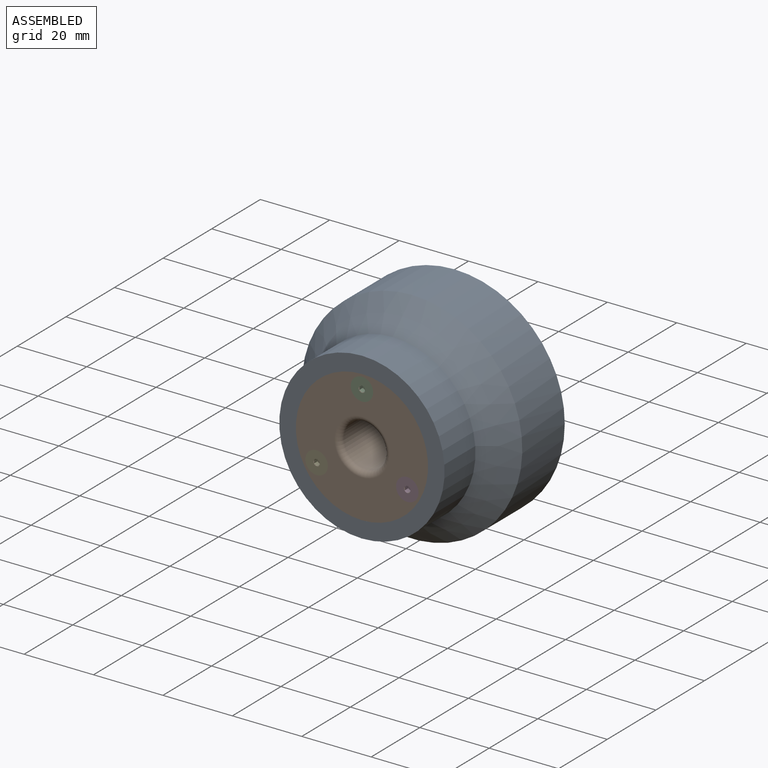
[diagram: assembled view]
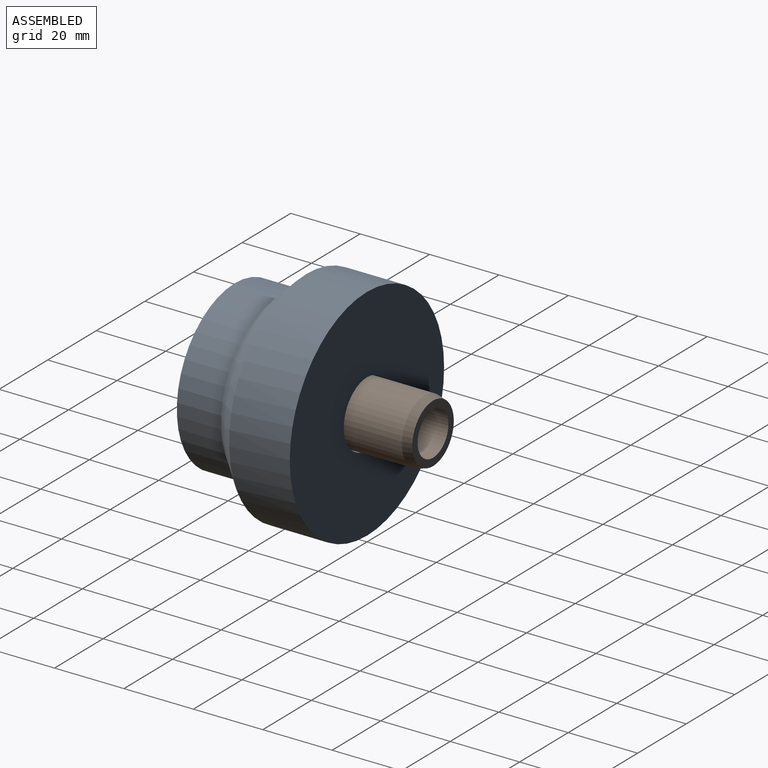
[diagram: assembled view, second angle]
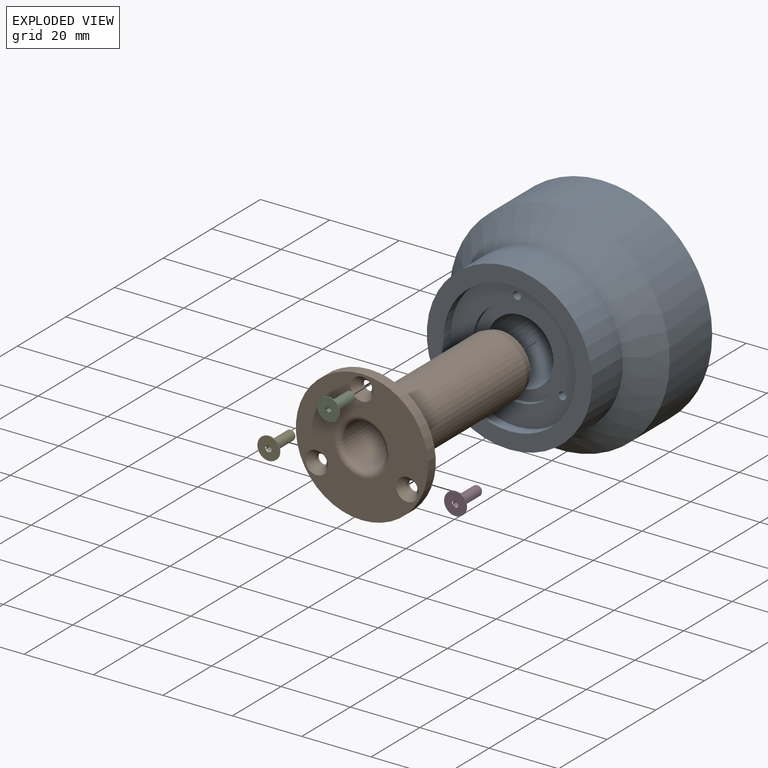
[diagram: exploded view]
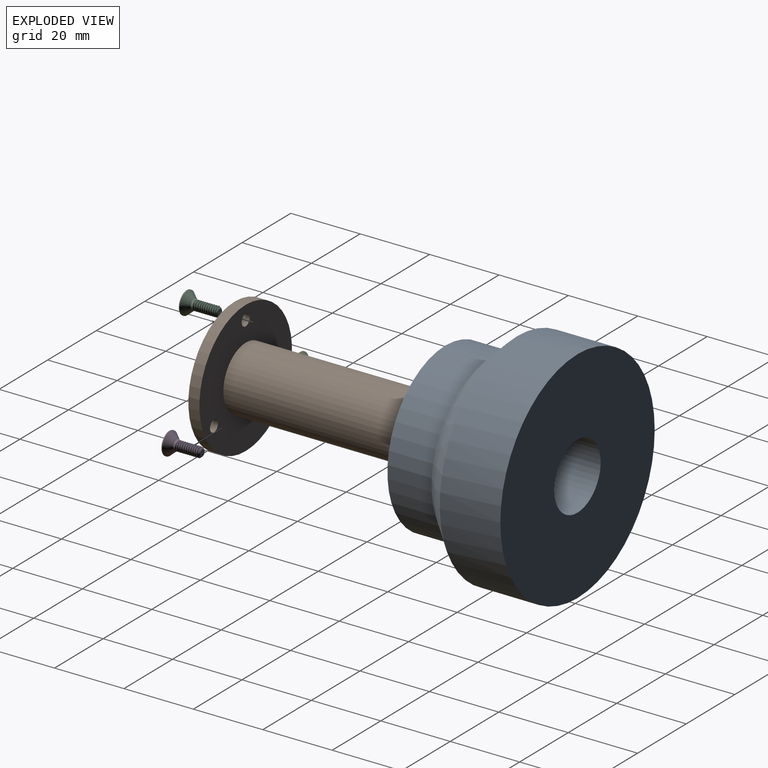
[diagram: exploded view, second angle]
ASSEMBLY  parts=5 mates=2
PART A: 16 faces, bbox 63.5x38.1x63.5 mm
  f0: plane 47.63x47.63mm, normal (0,-1,0), area 641.3mm2, adj f8,f14
  f1: cone r=0mm half-angle=59deg, axis (0,-1,0), area 4.7mm2, adj f2
  f2: cylinder r=1.13mm len=8.26mm, axis (0,-1,0), area 58.6mm2, adj f1,f9
  f3: cone r=0mm half-angle=59deg, axis (0,-1,0), area 4.7mm2, adj f4
  f4: cylinder r=1.13mm len=8.26mm, axis (0,-1,0), area 58.6mm2, adj f3,f9
  f5: cylinder r=9.53mm len=33.6mm, axis (0,1,0), area 2011.1mm2, adj f7,f11
  f6: cylinder r=31.75mm len=63.5mm, axis (0,1,0), area 3483.6mm2, adj f7,f15
  f7: plane 63.5x63.5mm, normal (0,1,0), area 2881.9mm2, adj f5,f6
  f8: cylinder r=19.05mm len=38.1mm, axis (0,-1,0), area 380mm2, adj f0,f9
  f9: plane 38.1x38.1mm, normal (0,-1,0), area 617.3mm2, adj f2,f4,f8,f10,f13
  f10: cylinder r=12.75mm len=25.5mm, axis (0,-1,0), area 105.8mm2, adj f9,f11
  f11: plane 25.5x25.5mm, normal (0,-1,0), area 225.7mm2, adj f5,f10
  f12: cone r=0mm half-angle=59deg, axis (0,-1,0), area 4.7mm2, adj f13
  f13: cylinder r=1.13mm len=8.26mm, axis (0,-1,0), area 58.6mm2, adj f9,f12
  f14: cylinder r=23.81mm len=47.63mm, axis (0,1,0), area 1900.2mm2, adj f0,f15
  f15: cone r=23.81mm half-angle=45deg, axis (0,1,0), area 1959.4mm2, adj f6,f14
PART B: 14 faces, bbox 57.2x38.1x38.1 mm
  f0: cylinder r=1.63mm len=3.26mm, axis (-1,0,0), area 13.6mm2, adj f1,f9
  f1: cone r=1.63mm half-angle=41deg, axis (-1,0,0), area 37.5mm2, adj f0,f5
  f2: cylinder r=1.63mm len=3.26mm, axis (-1,0,0), area 13.6mm2, adj f3,f9
  f3: cone r=1.63mm half-angle=41deg, axis (-1,0,0), area 37.5mm2, adj f2,f5
  f4: cylinder r=19.05mm len=38.1mm, axis (-1,0,0), area 380mm2, adj f5,f9
  f5: plane 38.1x38.1mm, normal (-1,0,0), area 843.3mm2, adj f1,f3,f4,f11,f13
  f6: cylinder r=6.35mm len=55.56mm, axis (-1,0,0), area 2216.8mm2, adj f7,f13
  f7: plane 17.05x17.05mm, normal (1,0,0), area 101.7mm2, adj f6,f12
  f8: cylinder r=9.21mm len=51.44mm, axis (-1,0,0), area 2975.6mm2, adj f9,f12
  f9: plane 38.1x38.1mm, normal (1,0,0), area 848.7mm2, adj f0,f2,f4,f8,f10
  f10: cylinder r=1.63mm len=3.26mm, axis (-1,0,0), area 13.6mm2, adj f9,f11
  f11: cone r=1.63mm half-angle=41deg, axis (-1,0,0), area 37.5mm2, adj f5,f10
  f12: cone r=9.21mm half-angle=15deg, axis (-1,0,0), area 146.5mm2, adj f7,f8
  f13: torus R=7.94mm, axis (1,0,0), area 108.5mm2, adj f5,f6
PART C: 24 faces, bbox 6.8x6.8x10.1 mm
  f0: cone r=0.92mm half-angle=45deg, axis (0,0,1), area 0.1mm2, adj f11,f18
  f1: cone r=1.42mm half-angle=47.5deg, axis (0,0,1), area 2.2mm2, adj f4,f6,f8,f9
  f2: cylinder r=3.24mm len=6.48mm, axis (0,0,1), area 4.3mm2, adj f3,f11
  f3: cone r=1.59mm half-angle=41deg, axis (0,0,1), area 38.1mm2, adj f2,f4
  f4: torus R=2.1mm, axis (0,0,1), area 4.5mm2, adj f1,f3,f7
  f5: cone r=0.95mm half-angle=45deg, axis (0,0,1), area 2.7mm2, adj f6,f7,f8,f9,f10
  f6: cylinder r=1.01mm len=6.53mm, axis (0,0,1), area 5.2mm2, adj f1,f5,f8,f9
  f7: cylinder r=1.42mm len=6.49mm, axis (0,0,-1), area 7.3mm2, adj f4,f5,f8,f9
  f8: bspline ~7.54x3.29mm, area 37.4mm2, adj f1,f5,f6,f7
  f9: bspline ~7.01x3.29mm, area 37.4mm2, adj f1,f5,f6,f7
  f10: plane 1.89x1.89mm, normal (0,0,-1), area 2.8mm2, adj f5
  f11: plane 6.48x6.48mm, normal (0,0,1), area 30.3mm2, adj f0,f2,f12,f13,f14,f15,f16
  f12: cone r=0.92mm half-angle=45deg, axis (0,0,1), area 0mm2, adj f11,f19
  f13: cone r=0.92mm half-angle=45deg, axis (0,0,1), area 0mm2, adj f11,f20
  f14: cone r=0.92mm half-angle=45deg, axis (0,0,1), area 0mm2, adj f11,f21
  f15: cone r=0.92mm half-angle=45deg, axis (0,0,1), area 0mm2, adj f11,f22
  f16: cone r=0.92mm half-angle=45deg, axis (0,0,1), area 0mm2, adj f11,f23
  f17: plane 1.83x1.59mm, normal (0,0,1), area 2.2mm2, adj f18,f19,f20,f21,f22,f23
  f18: plane 1.56x1.01mm, normal (-1,0,0), area 1.3mm2, adj f0,f17,f19,f23
  f19: plane 1.82x1.14mm, normal (-0.5,-0.87,0), area 1.3mm2, adj f12,f17,f18,f20
  f20: plane 1.82x1.14mm, normal (0.5,-0.87,0), area 1.3mm2, adj f13,f17,f19,f21
  f21: plane 1.82x1.26mm, normal (1,0,0), area 1.3mm2, adj f14,f17,f20,f22
  f22: plane 1.82x1.14mm, normal (0.5,0.87,0), area 1.3mm2, adj f15,f17,f21,f23
  f23: plane 1.82x1.14mm, normal (-0.5,0.87,0), area 1.3mm2, adj f16,f17,f18,f22
PART D: same geometry as C
PART E: same geometry as C
PLACE A at identity fixed
PLACE B rot(axis=(0,0,1),90deg) t=(0,-38.1,0)mm
PLACE C rot(axis=(1,0,0),90deg) t=(0,-38.1,15.09)mm
PLACE D rot(axis=(0.38,0.65,-0.65),138.6deg) t=(13.07,-38.1,-7.54)mm
PLACE E rot(axis=(0.38,-0.65,0.65),138.6deg) t=(-13.07,-38.1,-7.54)mm
MATE revolute A.f8 <-> B.f4  axis (0,-1,0) through (0,-34.93,0)mm
MATE fastened B.f10 <-> C.f0  axis (0,-1,0) through (0,-38.1,15.09)mm
